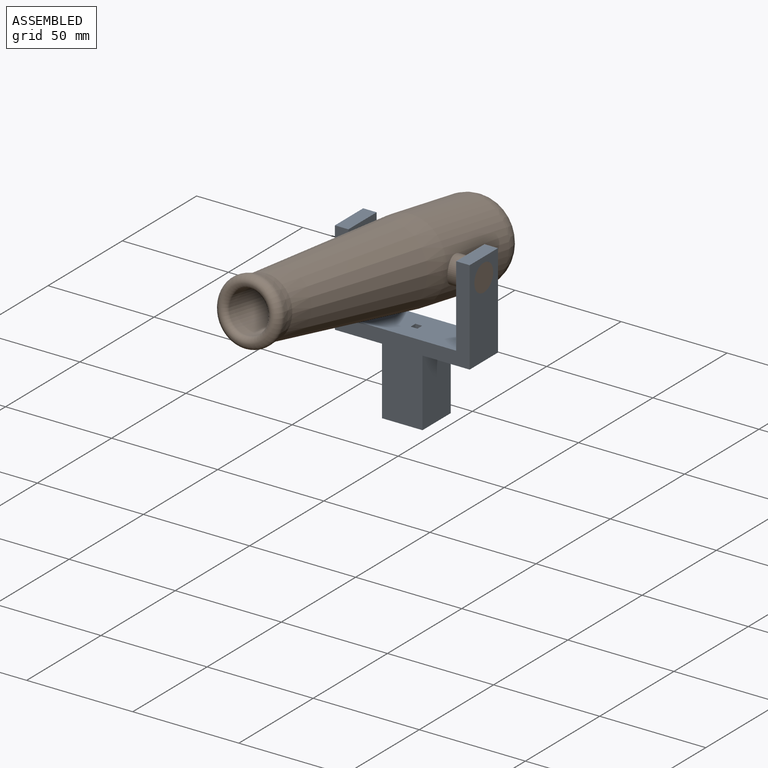
[diagram: assembled view]
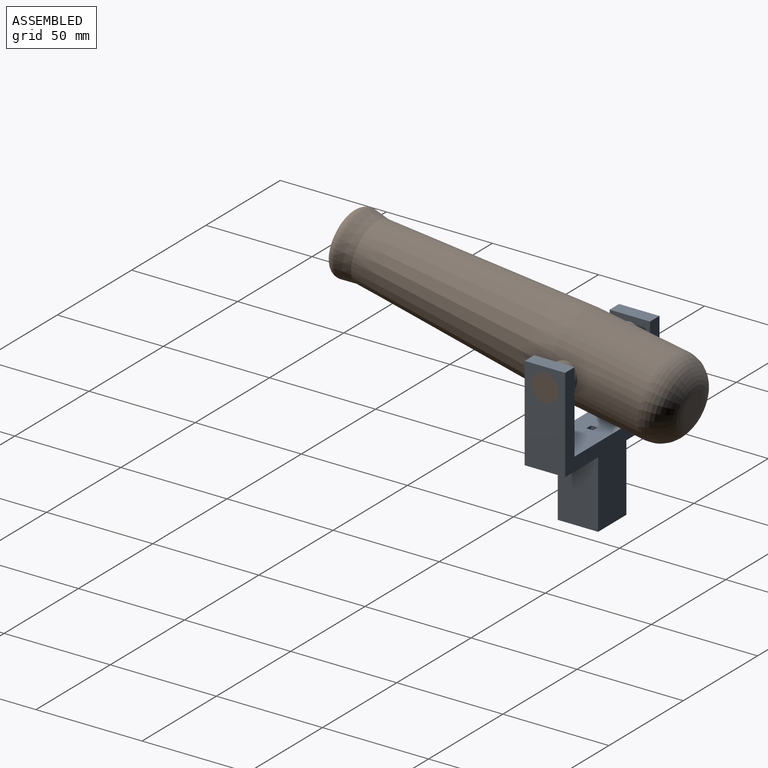
[diagram: assembled view, second angle]
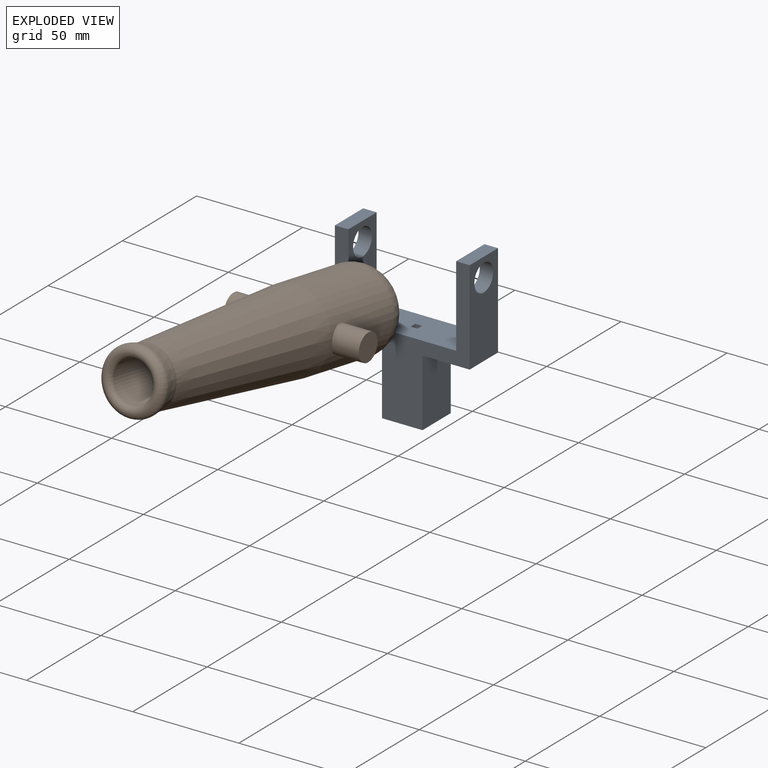
[diagram: exploded view]
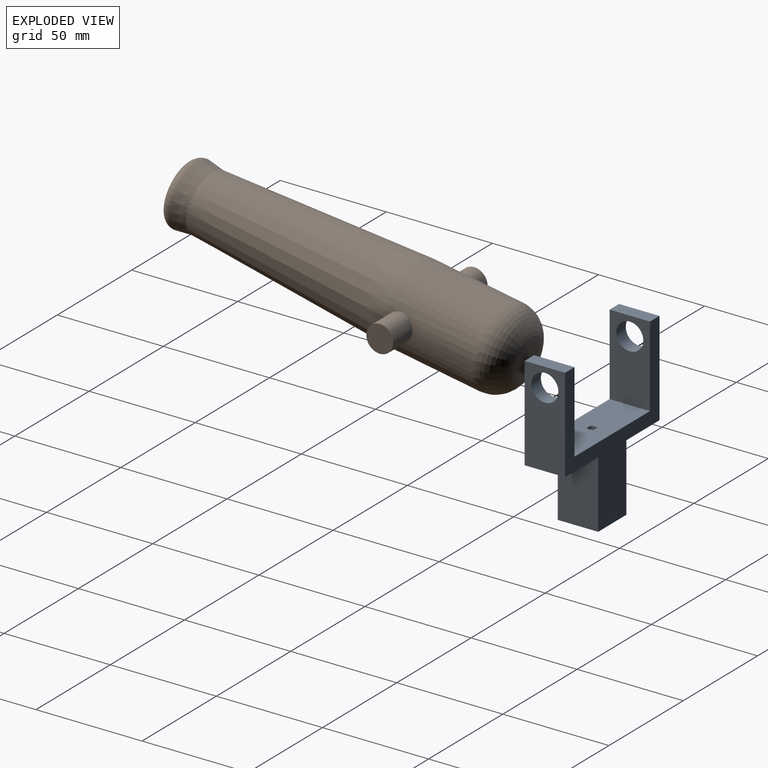
[diagram: exploded view, second angle]
ASSEMBLY  parts=2 mates=2
PART A: 20 faces, bbox 63.5x19.1x76.2 mm
  f0: plane 31.75x19.05mm, normal (-1,0,0), area 604.8mm2, adj f4,f6,f9,f12
  f1: plane 38.1x3.18mm, normal (-1,0,0), area 121mm2, adj f2,f7,f8,f9
  f2: plane 38.1x3.18mm, normal (0,1,0), area 121mm2, adj f1,f3,f8,f9
  f3: plane 38.1x3.18mm, normal (1,0,0), area 121mm2, adj f2,f7,f8,f9
  f4: plane 76.2x63.5mm, normal (0,-1,0), area 1491.9mm2, adj f0,f5,f8,f9,f10,f11,f12,f13
  f5: plane 31.75x19.05mm, normal (1,0,0), area 604.8mm2, adj f4,f6,f9,f10
  f6: plane 76.2x63.5mm, normal (0,1,0), area 1491.9mm2, adj f0,f5,f8,f9,f10,f11,f12,f13
  f7: plane 38.1x3.18mm, normal (0,-1,0), area 121mm2, adj f1,f3,f8,f9
  f8: plane 50.8x19.05mm, normal (0,0,1), area 957.7mm2, adj f1,f2,f3,f4,f6,f7,f14,f16
  f9: plane 19.05x19.05mm, normal (0,0,-1), area 352.8mm2, adj f0,f1,f2,f3,f4,f5,f6,f7
  f10: plane 22.23x19.05mm, normal (0,0,-1), area 423.4mm2, adj f4,f5,f6,f11
  f11: plane 44.45x19.05mm, normal (1,0,0), area 720.1mm2, adj f4,f6,f10,f17,f19
  f12: plane 22.23x19.05mm, normal (0,0,-1), area 423.4mm2, adj f0,f4,f6,f13
  f13: plane 44.45x19.05mm, normal (-1,0,0), area 720.1mm2, adj f4,f6,f12,f15,f18
  f14: plane 38.1x19.05mm, normal (1,0,0), area 599.1mm2, adj f4,f6,f8,f15,f18
  f15: plane 19.05x6.35mm, normal (0,0,1), area 121mm2, adj f4,f6,f13,f14
  f16: plane 38.1x19.05mm, normal (-1,0,0), area 599.1mm2, adj f4,f6,f8,f17,f19
  f17: plane 19.05x6.35mm, normal (0,0,1), area 121mm2, adj f4,f6,f11,f16
  f18: cylinder r=6.35mm len=12.7mm, axis (1,0,0), area 253.4mm2, adj f13,f14
  f19: cylinder r=6.35mm len=12.7mm, axis (-1,0,0), area 253.4mm2, adj f11,f16
PART B: 14 faces, bbox 63.5x165.1x38.1 mm
  f0: cylinder r=19.05mm len=42.77mm, axis (0,1,0), area 4862.3mm2, adj f2,f3,f11,f12
  f1: plane 12.7x12.7mm, normal (0,1,0), area 126.7mm2, adj f3
  f2: cone r=13.97mm half-angle=3deg, axis (0,1,0), area 10157.7mm2, adj f0,f4
  f3: torus R=6.35mm, axis (0,-1,0), area 1809.3mm2, adj f0,f1
  f4: cone r=13.76mm half-angle=9deg, axis (0,-1,0), area 671.6mm2, adj f2,f7
  f5: cylinder r=9.53mm len=124.21mm, axis (0,-1,0), area 7163.1mm2, adj f6,f8,f9
  f6: cone r=0mm half-angle=59deg, axis (0,-1,0), area 332.5mm2, adj f5
  f7: torus R=11.31mm, axis (0,1,0), area 382.2mm2, adj f4,f8
  f8: torus R=12.06mm, axis (0,1,0), area 393mm2, adj f5,f7
  f9: cylinder r=6.35mm len=19.05mm, axis (1,0,0), area 666.8mm2, adj f5
  f10: plane 12.7x12.7mm, normal (1,0,0), area 126.7mm2, adj f11
  f11: cylinder r=6.35mm len=13.79mm, axis (1,0,0), area 528.3mm2, adj f0,f10
  f12: cylinder r=6.35mm len=13.79mm, axis (1,0,0), area 528.3mm2, adj f0,f13
  f13: plane 12.7x12.7mm, normal (-1,0,0), area 126.7mm2, adj f12
PLACE A t=(-61.61,28.9,-28.94)mm
PLACE B rot(axis=(-1,0,0),10deg) t=(-61.61,76.43,29.99)mm
MATE cylindrical B.f9 <-> A.f19  axis (1,0,0) through (-43.74,28.9,38.37)mm
MATE planar B.f9 <-> A.f19  axis (1,0,0) through (-29.86,28.9,38.37)mm
